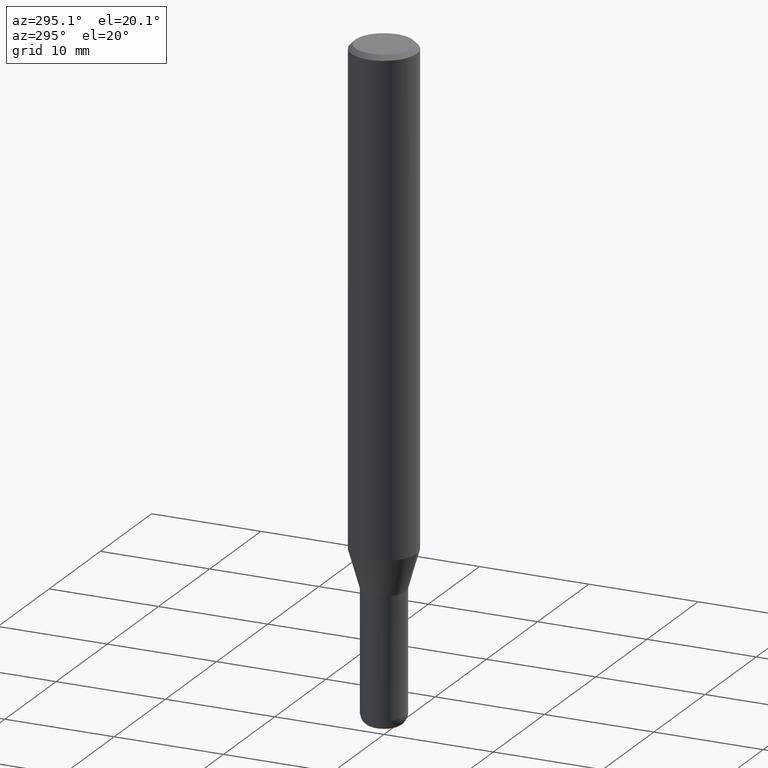
[diagram: clean part render]
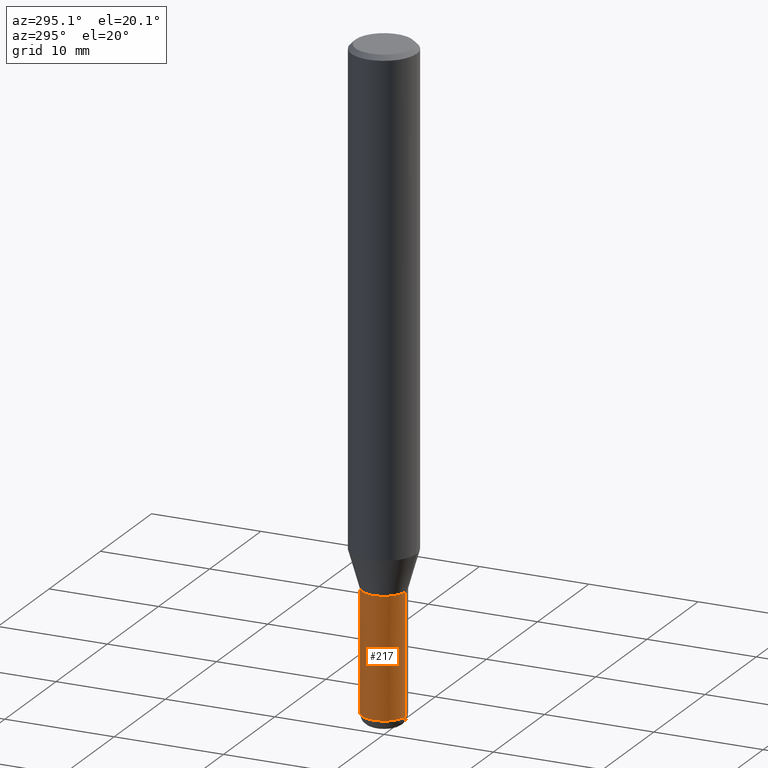
[diagram: same view with one face highlighted and labeled with its STEP entity id]
A machine part, auxiliary view. The second image highlights one B-rep face of the part: STEP entity #217.
In plain terms, the highlighted conical surface has half-angle 0.001 deg.
Its self-contained STEP definition (entity closure, byte-faithful):
#127=EDGE_CURVE('',#255,#181,#315,.T.);
#143=VERTEX_POINT('',#332);
#181=VERTEX_POINT('',#377);
#193=VERTEX_POINT('',#390);
#195=EDGE_CURVE('',#255,#193,#392,.T.);
#217=ADVANCED_FACE('',(#420),#421,.T.);
#247=EDGE_CURVE('',#143,#193,#454,.T.);
#255=VERTEX_POINT('',#463);
#271=EDGE_CURVE('',#181,#143,#480,.T.);
#315=LINE('',#522,#523);
#332=CARTESIAN_POINT('',(0.0,1.9999,-48.0));
#377=CARTESIAN_POINT('',(2.44909024700937E-016,-1.9999,-48.0));
#390=CARTESIAN_POINT('',(0.0,2.0,-59.0));
#392=CIRCLE('',#621,2.0);
#420=FACE_OUTER_BOUND('',#654,.T.);
#421=CONICAL_SURFACE('',#655,1.99995,9.09090909065765E-006);
#454=LINE('',#696,#697);
#463=CARTESIAN_POINT('',(2.44921270764476E-016,-2.0,-59.0));
#480=CIRCLE('',#727,1.9999);
#522=CARTESIAN_POINT('',(2.44915147732706E-016,-1.99995,-53.5));
#523=VECTOR('',#758,1.0);
#621=AXIS2_PLACEMENT_3D('',#858,#859,#860);
#654=EDGE_LOOP('',(#904,#905,#906,#907));
#655=AXIS2_PLACEMENT_3D('',#908,#909,#910);
#696=CARTESIAN_POINT('',(-2.44915147732706E-016,1.99995,-53.5));
#697=VECTOR('',#948,1.0);
#727=AXIS2_PLACEMENT_3D('',#972,#973,#974);
#758=DIRECTION('',(-1.11327850342876E-021,9.09090909053243E-006,0.999999999958678));
#858=CARTESIAN_POINT('',(0.0,0.0,-59.0));
#859=DIRECTION('',(0.0,0.0,-1.0));
#860=DIRECTION('',(0.0,1.0,0.0));
#904=ORIENTED_EDGE('',*,*,#247,.T.);
#905=ORIENTED_EDGE('',*,*,#195,.F.);
#906=ORIENTED_EDGE('',*,*,#127,.T.);
#907=ORIENTED_EDGE('',*,*,#271,.T.);
#908=CARTESIAN_POINT('',(0.0,0.0,-53.5));
#909=DIRECTION('',(0.0,-0.0,-1.0));
#910=DIRECTION('',(0.0,1.0,0.0));
#948=DIRECTION('',(-1.11327850342876E-021,9.09090909053243E-006,-0.999999999958678));
#972=CARTESIAN_POINT('',(0.0,0.0,-48.0));
#973=DIRECTION('',(0.0,0.0,-1.0));
#974=DIRECTION('',(0.0,1.0,0.0));